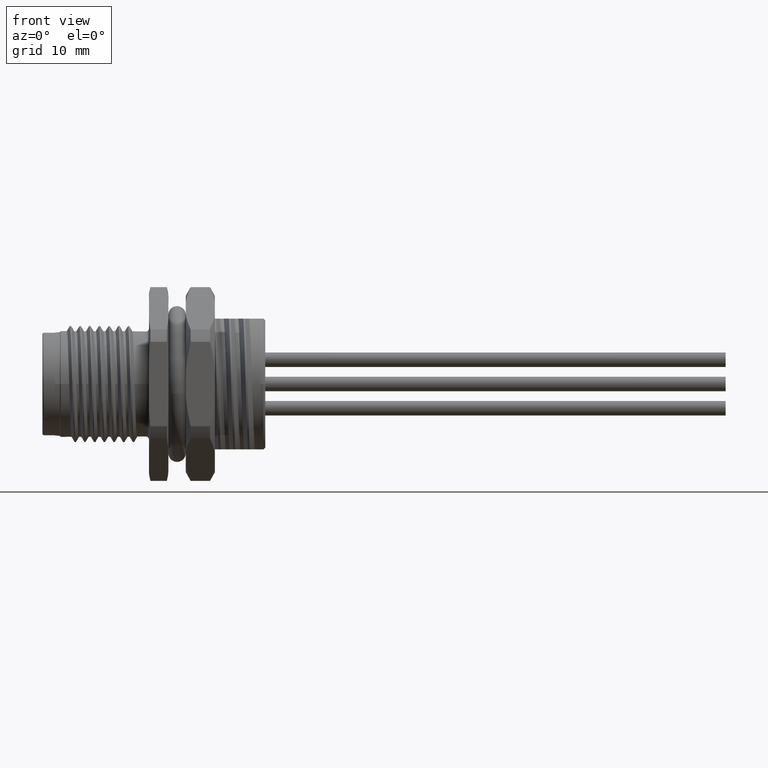
[diagram: clean part render]
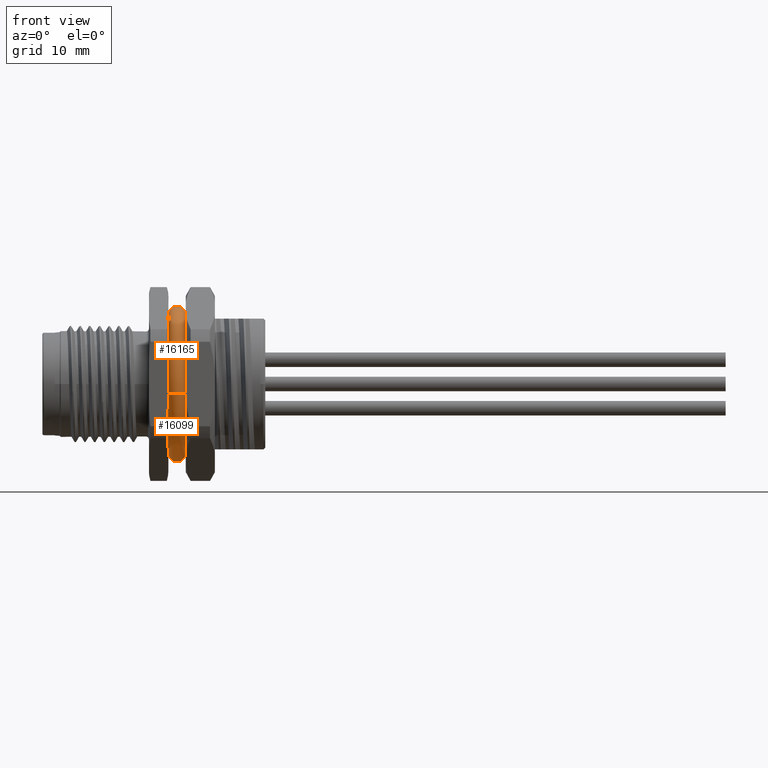
[diagram: same view with one multi-face feature highlighted, each face labeled with its STEP entity id]
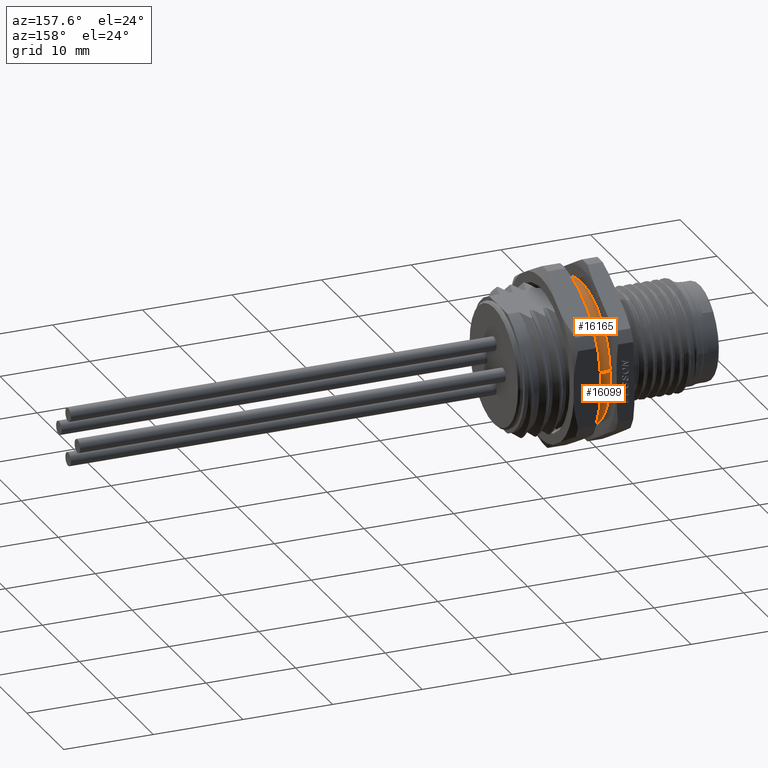
[diagram: same view with one multi-face feature highlighted, each face labeled with its STEP entity id]
A machine part, front view. The highlighted faces form ONE feature: a constant-radius fillet chain: 2 tangent blend faces with common blend radius 0.9 mm. The faces share edges in the B-rep.
A second angle (auxiliary view) of the same feature is appended — it is thin or edge-on in the first view.
Their STEP definitions:
[1] entity #16099 (Torus):
#2266=CARTESIAN_POINT('',(1.142050125629E1,2.390146859516E0,-6.941002512578E0));
#2267=CARTESIAN_POINT('',(1.141459584917E1,2.262653992081E0,-6.956145557698E0));
#2268=CARTESIAN_POINT('',(1.140621052708E1,2.003870828323E0,-6.984848585698E0));
#2269=CARTESIAN_POINT('',(1.140071470662E1,1.604452734808E0,-7.021726405184E0));
#2270=CARTESIAN_POINT('',(1.140000000046E1,1.330514463967E0,-7.041484546240E0));
#2271=CARTESIAN_POINT('',(1.14E1,1.191637942505E0,-7.049999991592E0));
#2273=CARTESIAN_POINT('',(1.14E1,1.191637942505E0,-7.049999991592E0));
#2274=CARTESIAN_POINT('',(1.139999999762E1,9.953008324768E-1,
-7.006138799739E0));
#2275=CARTESIAN_POINT('',(1.141858628576E1,6.011644400634E-1,
-6.939307893915E0));
#2276=CARTESIAN_POINT('',(1.143600080434E1,-6.788821260681E-5,
-6.908589571801E0));
#2277=CARTESIAN_POINT('',(1.141857902579E1,-6.012908664661E-1,
-6.939323864594E0));
#2278=CARTESIAN_POINT('',(1.139999999762E1,-9.953506935586E-1,
-7.006149938559E0));
#2279=CARTESIAN_POINT('',(1.14E1,-1.191637942558E0,-7.049999991591E0));
#2281=CARTESIAN_POINT('',(1.14E1,-1.191637942558E0,-7.049999991591E0));
#2282=CARTESIAN_POINT('',(1.140000000046E1,-1.330852208038E0,
-7.041463836902E0));
#2283=CARTESIAN_POINT('',(1.140071867651E1,-1.605240137375E0,
-7.021663940003E0));
#2284=CARTESIAN_POINT('',(1.140622965442E1,-2.004678531331E0,
-6.984764182750E0));
#2285=CARTESIAN_POINT('',(1.141461184744E1,-2.262999381560E0,
-6.956104533847E0));
#2286=CARTESIAN_POINT('',(1.142050125629E1,-2.390146859516E0,
-6.941002512578E0));
#2288=CARTESIAN_POINT('',(1.142050125629E1,0.E0,0.E0));
#2289=DIRECTION('',(-1.E0,0.E0,0.E0));
#2290=DIRECTION('',(0.E0,-3.255886175525E-1,-9.455115293429E-1));
#2291=AXIS2_PLACEMENT_3D('',#2288,#2289,#2290);
#2293=CARTESIAN_POINT('',(1.32E1,0.E0,0.E0));
#2294=DIRECTION('',(1.E0,0.E0,0.E0));
#2295=DIRECTION('',(0.E0,-9.920971063243E-1,-1.254724337173E-1));
#2296=AXIS2_PLACEMENT_3D('',#2293,#2294,#2295);
#2298=CARTESIAN_POINT('',(1.32E1,-2.357965224510E0,-6.75E0));
#2299=CARTESIAN_POINT('',(1.32E1,-2.152312586685E0,-6.75E0));
#2300=CARTESIAN_POINT('',(1.318498684639E1,-1.746341093339E0,-6.75E0));
#2301=CARTESIAN_POINT('',(1.314711788030E1,-1.156072136893E0,-6.75E0));
#2302=CARTESIAN_POINT('',(1.311464950622E1,-5.756160923899E-1,-6.75E0));
#2303=CARTESIAN_POINT('',(1.310201385305E1,2.989890543731E-6,-6.75E0));
#2304=CARTESIAN_POINT('',(1.311464973056E1,5.756207272899E-1,-6.75E0));
#2305=CARTESIAN_POINT('',(1.314711802075E1,1.156074191254E0,-6.75E0));
#2306=CARTESIAN_POINT('',(1.318498682191E1,1.746340916605E0,-6.75E0));
#2307=CARTESIAN_POINT('',(1.32E1,2.152312355365E0,-6.75E0));
#2308=CARTESIAN_POINT('',(1.32E1,2.357965224510E0,-6.75E0));
#2310=CARTESIAN_POINT('',(1.32E1,0.E0,0.E0));
#2311=DIRECTION('',(1.E0,0.E0,0.E0));
#2312=DIRECTION('',(0.E0,3.297853460853E-1,-9.440559440560E-1));
#2313=AXIS2_PLACEMENT_3D('',#2310,#2311,#2312);
#2315=CARTESIAN_POINT('',(1.32E1,0.E0,0.E0));
#2316=DIRECTION('',(1.E0,0.E0,0.E0));
#2317=DIRECTION('',(0.E0,1.E0,0.E0));
#2318=AXIS2_PLACEMENT_3D('',#2315,#2316,#2317);
#2320=CARTESIAN_POINT('',(1.142050125629E1,0.E0,0.E0));
#2321=DIRECTION('',(-1.E0,0.E0,0.E0));
#2322=DIRECTION('',(0.E0,9.920971063243E-1,1.254724337173E-1));
#2323=AXIS2_PLACEMENT_3D('',#2320,#2321,#2322);
#2374=CARTESIAN_POINT('',(1.23E1,7.093494310218E0,8.971279010787E-1));
#2375=DIRECTION('',(0.E0,1.254724337173E-1,-9.920971063243E-1));
#2376=DIRECTION('',(-9.772208263451E-1,2.105478222560E-1,2.662838899936E-2));
#2377=AXIS2_PLACEMENT_3D('',#2374,#2375,#2376);
#2379=CARTESIAN_POINT('',(1.23E1,7.093494310218E0,8.971279010787E-1));
#2380=DIRECTION('',(0.E0,1.254724337173E-1,-9.920971063243E-1));
#2381=DIRECTION('',(0.E0,9.920971063243E-1,1.254724337173E-1));
#2382=AXIS2_PLACEMENT_3D('',#2379,#2380,#2381);
#2411=CARTESIAN_POINT('',(1.23E1,-7.093494310218E0,-8.971279010786E-1));
#2412=DIRECTION('',(0.E0,1.254724337173E-1,-9.920971063243E-1));
#2413=DIRECTION('',(1.E0,-1.103314970250E-12,-1.395180267612E-13));
#2414=AXIS2_PLACEMENT_3D('',#2411,#2412,#2413);
#2416=CARTESIAN_POINT('',(1.23E1,-7.093494310218E0,-8.971279010786E-1));
#2417=DIRECTION('',(0.E0,1.254724337173E-1,-9.920971063243E-1));
#2418=DIRECTION('',(0.E0,-9.920971063243E-1,-1.254724337173E-1));
#2419=AXIS2_PLACEMENT_3D('',#2416,#2417,#2418);
#12778=CARTESIAN_POINT('',(1.14E1,1.191637942505E0,-7.049999991592E0));
#12780=VERTEX_POINT('',#12778);
#12791=CARTESIAN_POINT('',(1.14E1,-1.191637942558E0,-7.049999991591E0));
#12792=VERTEX_POINT('',#12791);
#12793=VERTEX_POINT('',#2286);
#12794=VERTEX_POINT('',#2266);
#12795=CARTESIAN_POINT('',(1.142050125629E1,-7.282987350248E0,
-9.210934511780E-1));
#12796=VERTEX_POINT('',#12795);
#12797=CARTESIAN_POINT('',(1.23E1,-7.986381705910E0,-1.010053091424E0));
#12798=VERTEX_POINT('',#12797);
#12799=CARTESIAN_POINT('',(1.32E1,-7.093494310219E0,-8.971279010787E-1));
#12800=VERTEX_POINT('',#12799);
#12801=CARTESIAN_POINT('',(1.32E1,-2.357965224510E0,-6.75E0));
#12802=VERTEX_POINT('',#12801);
#12803=VERTEX_POINT('',#2308);
#12804=CARTESIAN_POINT('',(1.32E1,7.15E0,0.E0));
#12805=VERTEX_POINT('',#12804);
#12806=CARTESIAN_POINT('',(1.32E1,7.093494310219E0,8.971279010788E-1));
#12807=VERTEX_POINT('',#12806);
#12808=CARTESIAN_POINT('',(1.23E1,7.986381705910E0,1.010053091424E0));
#12809=VERTEX_POINT('',#12808);
#12810=CARTESIAN_POINT('',(1.142050125629E1,7.282987350248E0,
9.210934511781E-1));
#12811=VERTEX_POINT('',#12810);
#16067=CARTESIAN_POINT('',(1.23E1,0.E0,0.E0));
#16068=DIRECTION('',(1.E0,0.E0,0.E0));
#16069=DIRECTION('',(0.E0,-9.920971063243E-1,-1.254724337173E-1));
#16070=AXIS2_PLACEMENT_3D('',#16067,#16068,#16069);
#16071=TOROIDAL_SURFACE('',#16070,7.149999999999E0,8.999999999999E-1);
#16072=ORIENTED_EDGE('',*,*,#16059,.T.);
#16074=ORIENTED_EDGE('',*,*,#16073,.T.);
#16076=ORIENTED_EDGE('',*,*,#16075,.T.);
#16078=ORIENTED_EDGE('',*,*,#16077,.T.);
#16080=ORIENTED_EDGE('',*,*,#16079,.F.);
#16082=ORIENTED_EDGE('',*,*,#16081,.F.);
#16084=ORIENTED_EDGE('',*,*,#16083,.T.);
#16086=ORIENTED_EDGE('',*,*,#16085,.T.);
#16088=ORIENTED_EDGE('',*,*,#16087,.T.);
#16090=ORIENTED_EDGE('',*,*,#16089,.T.);
#16092=ORIENTED_EDGE('',*,*,#16091,.F.);
#16094=ORIENTED_EDGE('',*,*,#16093,.F.);
#16096=ORIENTED_EDGE('',*,*,#16095,.T.);
#16097=EDGE_LOOP('',(#16072,#16074,#16076,#16078,#16080,#16082,#16084,#16086,
#16088,#16090,#16092,#16094,#16096));
#16098=FACE_OUTER_BOUND('',#16097,.F.);
#16099=ADVANCED_FACE('',(#16098),#16071,.T.);
#2272=B_SPLINE_CURVE_WITH_KNOTS('',3,(#2266,#2267,#2268,#2269,#2270,#2271),
.UNSPECIFIED.,.F.,.F.,(4,1,1,4),(0.E0,3.333333333333E-1,6.666666666667E-1,1.E0),
.UNSPECIFIED.);
#2280=B_SPLINE_CURVE_WITH_KNOTS('',3,(#2273,#2274,#2275,#2276,#2277,#2278,
#2279),.UNSPECIFIED.,.F.,.F.,(4,1,1,1,4),(0.E0,2.5E-1,5.E-1,7.5E-1,1.E0),
.UNSPECIFIED.);
#2287=B_SPLINE_CURVE_WITH_KNOTS('',3,(#2281,#2282,#2283,#2284,#2285,#2286),
.UNSPECIFIED.,.F.,.F.,(4,1,1,4),(0.E0,3.333333333333E-1,6.666666666667E-1,1.E0),
.UNSPECIFIED.);
#2292=CIRCLE('',#2291,7.341002512578E0);
#2297=CIRCLE('',#2296,7.15E0);
#2309=B_SPLINE_CURVE_WITH_KNOTS('',3,(#2298,#2299,#2300,#2301,#2302,#2303,#2304,
#2305,#2306,#2307,#2308),.UNSPECIFIED.,.F.,.F.,(4,1,1,1,1,1,1,1,4),(0.E0,
1.25E-1,2.5E-1,3.75E-1,5.E-1,6.25E-1,7.5E-1,8.75E-1,1.E0),.UNSPECIFIED.);
#2314=CIRCLE('',#2313,7.15E0);
#2319=CIRCLE('',#2318,7.15E0);
#2324=CIRCLE('',#2323,7.341002512578E0);
#2378=CIRCLE('',#2377,8.999999999999E-1);
#2383=CIRCLE('',#2382,8.999999999999E-1);
#2415=CIRCLE('',#2414,8.999999999999E-1);
#2420=CIRCLE('',#2419,8.999999999999E-1);
#16059=EDGE_CURVE('',#12794,#12780,#2272,.T.);
#16073=EDGE_CURVE('',#12780,#12792,#2280,.T.);
#16075=EDGE_CURVE('',#12792,#12793,#2287,.T.);
#16077=EDGE_CURVE('',#12793,#12796,#2292,.T.);
#16079=EDGE_CURVE('',#12798,#12796,#2420,.T.);
#16081=EDGE_CURVE('',#12800,#12798,#2415,.T.);
#16083=EDGE_CURVE('',#12800,#12802,#2297,.T.);
#16085=EDGE_CURVE('',#12802,#12803,#2309,.T.);
#16087=EDGE_CURVE('',#12803,#12805,#2314,.T.);
#16089=EDGE_CURVE('',#12805,#12807,#2319,.T.);
#16091=EDGE_CURVE('',#12809,#12807,#2383,.T.);
#16093=EDGE_CURVE('',#12811,#12809,#2378,.T.);
#16095=EDGE_CURVE('',#12811,#12794,#2324,.T.);
[2] entity #16165 (Torus):
#2347=CARTESIAN_POINT('',(1.142050125629E1,-2.390146859516E0,6.941002512578E0));
#2348=CARTESIAN_POINT('',(1.141459584917E1,-2.262653992081E0,6.956145557698E0));
#2349=CARTESIAN_POINT('',(1.140621052708E1,-2.003870828323E0,6.984848585698E0));
#2350=CARTESIAN_POINT('',(1.140071470662E1,-1.604452734808E0,7.021726405184E0));
#2351=CARTESIAN_POINT('',(1.140000000046E1,-1.330514463967E0,7.041484546240E0));
#2352=CARTESIAN_POINT('',(1.14E1,-1.191637942505E0,7.049999991592E0));
#2354=CARTESIAN_POINT('',(1.14E1,-1.191637942505E0,7.049999991592E0));
#2355=CARTESIAN_POINT('',(1.139999999762E1,-9.953008324766E-1,
7.006138799739E0));
#2356=CARTESIAN_POINT('',(1.141858628576E1,-6.011644400632E-1,
6.939307893915E0));
#2357=CARTESIAN_POINT('',(1.143600080434E1,6.788821293011E-5,6.908589571801E0));
#2358=CARTESIAN_POINT('',(1.141857902579E1,6.012908664663E-1,6.939323864594E0));
#2359=CARTESIAN_POINT('',(1.139999999762E1,9.953506935587E-1,7.006149938559E0));
#2360=CARTESIAN_POINT('',(1.14E1,1.191637942558E0,7.049999991591E0));
#2362=CARTESIAN_POINT('',(1.14E1,1.191637942558E0,7.049999991591E0));
#2363=CARTESIAN_POINT('',(1.140000000046E1,1.330852208038E0,7.041463836902E0));
#2364=CARTESIAN_POINT('',(1.140071867651E1,1.605240137374E0,7.021663940003E0));
#2365=CARTESIAN_POINT('',(1.140622965442E1,2.004678531330E0,6.984764182750E0));
#2366=CARTESIAN_POINT('',(1.141461184744E1,2.262999381559E0,6.956104533847E0));
#2367=CARTESIAN_POINT('',(1.142050125629E1,2.390146859516E0,6.941002512578E0));
#2369=CARTESIAN_POINT('',(1.142050125629E1,0.E0,0.E0));
#2370=DIRECTION('',(-1.E0,0.E0,0.E0));
#2371=DIRECTION('',(0.E0,3.255886175525E-1,9.455115293429E-1));
#2372=AXIS2_PLACEMENT_3D('',#2369,#2370,#2371);
#2374=CARTESIAN_POINT('',(1.23E1,7.093494310218E0,8.971279010787E-1));
#2375=DIRECTION('',(0.E0,1.254724337173E-1,-9.920971063243E-1));
#2376=DIRECTION('',(-9.772208263451E-1,2.105478222560E-1,2.662838899936E-2));
#2377=AXIS2_PLACEMENT_3D('',#2374,#2375,#2376);
#2379=CARTESIAN_POINT('',(1.23E1,7.093494310218E0,8.971279010787E-1));
#2380=DIRECTION('',(0.E0,1.254724337173E-1,-9.920971063243E-1));
#2381=DIRECTION('',(0.E0,9.920971063243E-1,1.254724337173E-1));
#2382=AXIS2_PLACEMENT_3D('',#2379,#2380,#2381);
#2384=CARTESIAN_POINT('',(1.32E1,0.E0,0.E0));
#2385=DIRECTION('',(1.E0,0.E0,0.E0));
#2386=DIRECTION('',(0.E0,9.920971063243E-1,1.254724337173E-1));
#2387=AXIS2_PLACEMENT_3D('',#2384,#2385,#2386);
#2389=CARTESIAN_POINT('',(1.32E1,2.357965224510E0,6.75E0));
#2390=CARTESIAN_POINT('',(1.32E1,2.152312586685E0,6.75E0));
#2391=CARTESIAN_POINT('',(1.318498684639E1,1.746341093339E0,6.75E0));
#2392=CARTESIAN_POINT('',(1.314711788030E1,1.156072136893E0,6.75E0));
#2393=CARTESIAN_POINT('',(1.311464950622E1,5.756160923899E-1,6.75E0));
#2394=CARTESIAN_POINT('',(1.310201385305E1,-2.989890547145E-6,6.75E0));
#2395=CARTESIAN_POINT('',(1.311464973056E1,-5.756207272899E-1,6.75E0));
#2396=CARTESIAN_POINT('',(1.314711802075E1,-1.156074191254E0,6.75E0));
#2397=CARTESIAN_POINT('',(1.318498682191E1,-1.746340916605E0,6.75E0));
#2398=CARTESIAN_POINT('',(1.32E1,-2.152312355365E0,6.75E0));
#2399=CARTESIAN_POINT('',(1.32E1,-2.357965224510E0,6.75E0));
#2401=CARTESIAN_POINT('',(1.32E1,0.E0,0.E0));
#2402=DIRECTION('',(1.E0,0.E0,0.E0));
#2403=DIRECTION('',(0.E0,-3.297853460853E-1,9.440559440560E-1));
#2404=AXIS2_PLACEMENT_3D('',#2401,#2402,#2403);
#2406=CARTESIAN_POINT('',(1.32E1,0.E0,0.E0));
#2407=DIRECTION('',(1.E0,0.E0,0.E0));
#2408=DIRECTION('',(0.E0,-1.E0,0.E0));
#2409=AXIS2_PLACEMENT_3D('',#2406,#2407,#2408);
#2411=CARTESIAN_POINT('',(1.23E1,-7.093494310218E0,-8.971279010786E-1));
#2412=DIRECTION('',(0.E0,1.254724337173E-1,-9.920971063243E-1));
#2413=DIRECTION('',(1.E0,-1.103314970250E-12,-1.395180267612E-13));
#2414=AXIS2_PLACEMENT_3D('',#2411,#2412,#2413);
#2416=CARTESIAN_POINT('',(1.23E1,-7.093494310218E0,-8.971279010786E-1));
#2417=DIRECTION('',(0.E0,1.254724337173E-1,-9.920971063243E-1));
#2418=DIRECTION('',(0.E0,-9.920971063243E-1,-1.254724337173E-1));
#2419=AXIS2_PLACEMENT_3D('',#2416,#2417,#2418);
#2421=CARTESIAN_POINT('',(1.142050125629E1,0.E0,0.E0));
#2422=DIRECTION('',(-1.E0,0.E0,0.E0));
#2423=DIRECTION('',(0.E0,-9.920971063243E-1,-1.254724337173E-1));
#2424=AXIS2_PLACEMENT_3D('',#2421,#2422,#2423);
#12783=CARTESIAN_POINT('',(1.14E1,1.191637942558E0,7.049999991591E0));
#12784=VERTEX_POINT('',#12783);
#12785=CARTESIAN_POINT('',(1.14E1,-1.191637942505E0,7.049999991592E0));
#12786=VERTEX_POINT('',#12785);
#12795=CARTESIAN_POINT('',(1.142050125629E1,-7.282987350248E0,
-9.210934511780E-1));
#12796=VERTEX_POINT('',#12795);
#12797=CARTESIAN_POINT('',(1.23E1,-7.986381705910E0,-1.010053091424E0));
#12798=VERTEX_POINT('',#12797);
#12799=CARTESIAN_POINT('',(1.32E1,-7.093494310219E0,-8.971279010787E-1));
#12800=VERTEX_POINT('',#12799);
#12806=CARTESIAN_POINT('',(1.32E1,7.093494310219E0,8.971279010788E-1));
#12807=VERTEX_POINT('',#12806);
#12808=CARTESIAN_POINT('',(1.23E1,7.986381705910E0,1.010053091424E0));
#12809=VERTEX_POINT('',#12808);
#12810=CARTESIAN_POINT('',(1.142050125629E1,7.282987350248E0,
9.210934511781E-1));
#12811=VERTEX_POINT('',#12810);
#12812=CARTESIAN_POINT('',(1.142050125629E1,-2.390146859519E0,
6.941002512578E0));
#12813=VERTEX_POINT('',#12812);
#12814=VERTEX_POINT('',#2367);
#12815=CARTESIAN_POINT('',(1.32E1,2.357965224510E0,6.75E0));
#12816=VERTEX_POINT('',#12815);
#12817=VERTEX_POINT('',#2399);
#12818=CARTESIAN_POINT('',(1.32E1,-7.15E0,0.E0));
#12819=VERTEX_POINT('',#12818);
#16137=CARTESIAN_POINT('',(1.23E1,0.E0,0.E0));
#16138=DIRECTION('',(1.E0,0.E0,0.E0));
#16139=DIRECTION('',(0.E0,-9.920971063243E-1,-1.254724337173E-1));
#16140=AXIS2_PLACEMENT_3D('',#16137,#16138,#16139);
#16141=TOROIDAL_SURFACE('',#16140,7.149999999999E0,8.999999999999E-1);
#16143=ORIENTED_EDGE('',*,*,#16142,.T.);
#16145=ORIENTED_EDGE('',*,*,#16144,.T.);
#16147=ORIENTED_EDGE('',*,*,#16146,.T.);
#16149=ORIENTED_EDGE('',*,*,#16148,.T.);
#16150=ORIENTED_EDGE('',*,*,#16093,.T.);
#16151=ORIENTED_EDGE('',*,*,#16091,.T.);
#16153=ORIENTED_EDGE('',*,*,#16152,.T.);
#16155=ORIENTED_EDGE('',*,*,#16154,.T.);
#16157=ORIENTED_EDGE('',*,*,#16156,.T.);
#16159=ORIENTED_EDGE('',*,*,#16158,.T.);
#16160=ORIENTED_EDGE('',*,*,#16081,.T.);
#16161=ORIENTED_EDGE('',*,*,#16079,.T.);
#16162=ORIENTED_EDGE('',*,*,#16127,.T.);
#16163=EDGE_LOOP('',(#16143,#16145,#16147,#16149,#16150,#16151,#16153,#16155,
#16157,#16159,#16160,#16161,#16162));
#16164=FACE_OUTER_BOUND('',#16163,.F.);
#16165=ADVANCED_FACE('',(#16164),#16141,.T.);
#2353=B_SPLINE_CURVE_WITH_KNOTS('',3,(#2347,#2348,#2349,#2350,#2351,#2352),
.UNSPECIFIED.,.F.,.F.,(4,1,1,4),(0.E0,3.333333333333E-1,6.666666666667E-1,1.E0),
.UNSPECIFIED.);
#2361=B_SPLINE_CURVE_WITH_KNOTS('',3,(#2354,#2355,#2356,#2357,#2358,#2359,
#2360),.UNSPECIFIED.,.F.,.F.,(4,1,1,1,4),(0.E0,2.5E-1,5.E-1,7.5E-1,1.E0),
.UNSPECIFIED.);
#2368=B_SPLINE_CURVE_WITH_KNOTS('',3,(#2362,#2363,#2364,#2365,#2366,#2367),
.UNSPECIFIED.,.F.,.F.,(4,1,1,4),(0.E0,3.333333333333E-1,6.666666666667E-1,1.E0),
.UNSPECIFIED.);
#2373=CIRCLE('',#2372,7.341002512578E0);
#2378=CIRCLE('',#2377,8.999999999999E-1);
#2383=CIRCLE('',#2382,8.999999999999E-1);
#2388=CIRCLE('',#2387,7.15E0);
#2400=B_SPLINE_CURVE_WITH_KNOTS('',3,(#2389,#2390,#2391,#2392,#2393,#2394,#2395,
#2396,#2397,#2398,#2399),.UNSPECIFIED.,.F.,.F.,(4,1,1,1,1,1,1,1,4),(0.E0,
1.25E-1,2.5E-1,3.75E-1,5.E-1,6.25E-1,7.5E-1,8.75E-1,1.E0),.UNSPECIFIED.);
#2405=CIRCLE('',#2404,7.15E0);
#2410=CIRCLE('',#2409,7.15E0);
#2415=CIRCLE('',#2414,8.999999999999E-1);
#2420=CIRCLE('',#2419,8.999999999999E-1);
#2425=CIRCLE('',#2424,7.341002512578E0);
#16079=EDGE_CURVE('',#12798,#12796,#2420,.T.);
#16081=EDGE_CURVE('',#12800,#12798,#2415,.T.);
#16091=EDGE_CURVE('',#12809,#12807,#2383,.T.);
#16093=EDGE_CURVE('',#12811,#12809,#2378,.T.);
#16127=EDGE_CURVE('',#12796,#12813,#2425,.T.);
#16142=EDGE_CURVE('',#12813,#12786,#2353,.T.);
#16144=EDGE_CURVE('',#12786,#12784,#2361,.T.);
#16146=EDGE_CURVE('',#12784,#12814,#2368,.T.);
#16148=EDGE_CURVE('',#12814,#12811,#2373,.T.);
#16152=EDGE_CURVE('',#12807,#12816,#2388,.T.);
#16154=EDGE_CURVE('',#12816,#12817,#2400,.T.);
#16156=EDGE_CURVE('',#12817,#12819,#2405,.T.);
#16158=EDGE_CURVE('',#12819,#12800,#2410,.T.);